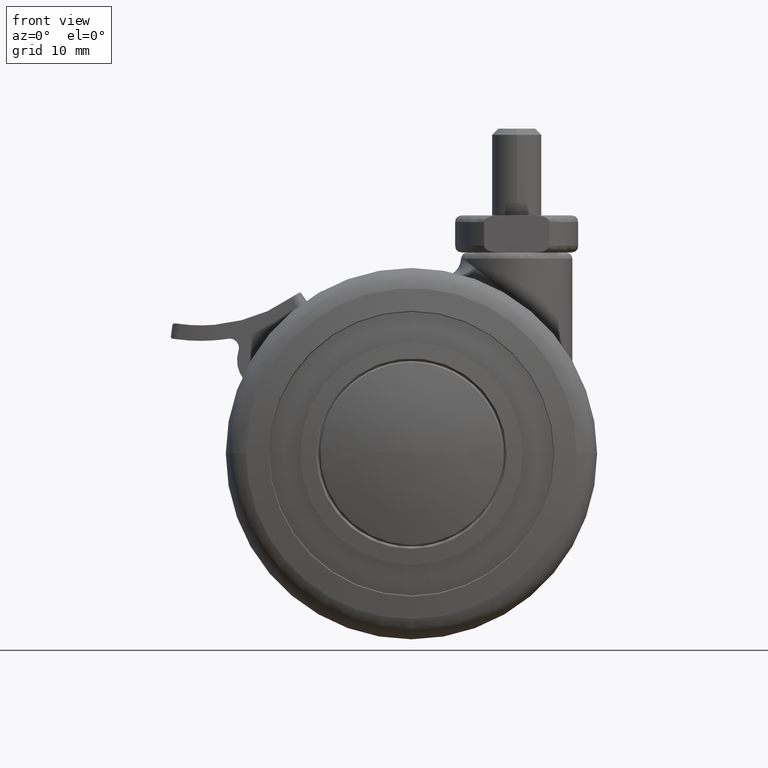
[diagram: clean part render]
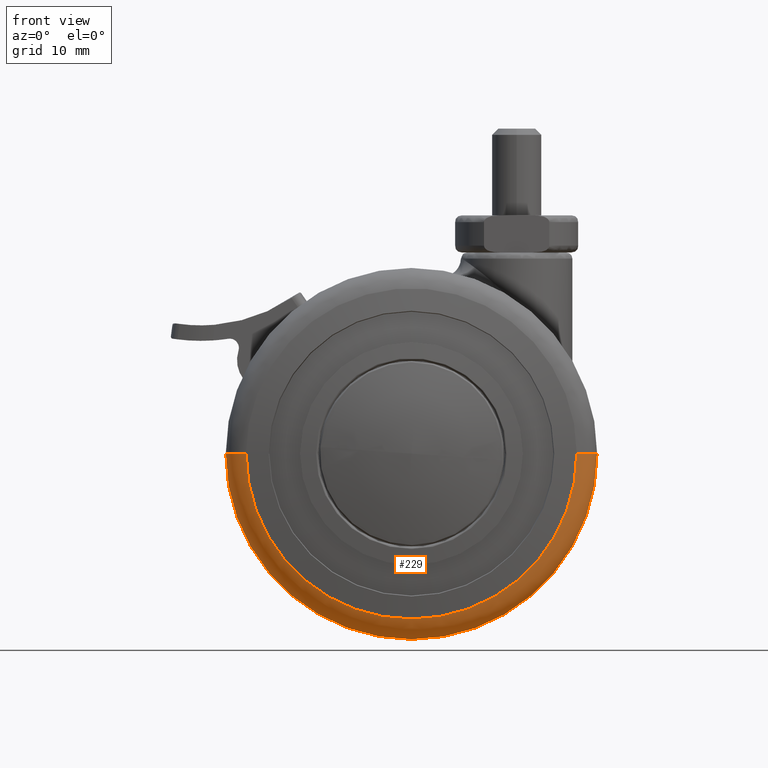
[diagram: same view with one face highlighted and labeled with its STEP entity id]
A machine part, front view. The second image highlights one B-rep face of the part: STEP entity #229.
In plain terms, the highlighted face is a freeform B-spline surface patch.
Its self-contained STEP definition (entity closure, byte-faithful):
#229=ADVANCED_FACE('',(#764),#763,.T.);
#763=( BOUNDED_SURFACE() B_SPLINE_SURFACE( 2,2,((#3525,#3526,#3527,#3528,#3529),(#3530,#3531,#3532,#3533,#3534),(#3535,#3536,#3537,#3538,#3539),(#3540,#3541,#3542,#3543,#3544),(#3545,#3546,#3547,#3548,#3549)), .UNSPECIFIED.,.F.,.F.,.F.) B_SPLINE_SURFACE_WITH_KNOTS((3,2,3),(3,2,3),(0.00000000000E+00,5.00000000000E-01,1.00000000000E+00),(0.00000000000E+00,5.00000000000E-01,1.00000000000E+00), .UNSPECIFIED. ) GEOMETRIC_REPRESENTATION_ITEM() RATIONAL_B_SPLINE_SURFACE(((1.00000000000E+00,7.07106781187E-01,1.00000000000E+00,7.07106781187E-01,1.00000000000E+00),(7.07106781187E-01,5.00000000000E-01,7.07106781187E-01,5.00000000000E-01,7.07106781187E-01),(1.00000000000E+00,7.07106781187E-01,1.00000000000E+00,7.07106781187E-01,1.00000000000E+00),(7.07106781187E-01,5.00000000000E-01,7.07106781187E-01,5.00000000000E-01,7.07106781187E-01),(1.00000000000E+00,7.07106781187E-01,1.00000000000E+00,7.07106781187E-01,1.00000000000E+00))) REPRESENTATION_ITEM('') SURFACE() );
#764=FACE_OUTER_BOUND('',#3550,.T.);
#3525=CARTESIAN_POINT('',(2.20000000000E+01,-2.69413397841E-15,8.45627996854E+00));
#3526=CARTESIAN_POINT('',(2.20000000000E+01,-2.69413397841E-15,1.24562799685E+01));
#3527=CARTESIAN_POINT('',(2.60000000000E+01,-3.18397651994E-15,1.24562799685E+01));
#3528=CARTESIAN_POINT('',(3.00000000000E+01,-3.67381906147E-15,1.24562799685E+01));
#3529=CARTESIAN_POINT('',(3.00000000000E+01,-3.67381906147E-15,8.45627996854E+00));
#3530=CARTESIAN_POINT('',(2.20000000000E+01,-2.20000000000E+01,8.45627996854E+00));
#3531=CARTESIAN_POINT('',(2.20000000000E+01,-2.20000000000E+01,1.24562799685E+01));
#3532=CARTESIAN_POINT('',(2.60000000000E+01,-2.60000000000E+01,1.24562799685E+01));
#3533=CARTESIAN_POINT('',(3.00000000000E+01,-3.00000000000E+01,1.24562799685E+01));
#3534=CARTESIAN_POINT('',(3.00000000000E+01,-3.00000000000E+01,8.45627996854E+00));
#3535=CARTESIAN_POINT('',(-1.34702249935E-15,-2.20000000000E+01,8.45627996854E+00));
#3536=CARTESIAN_POINT('',(-1.34702249935E-15,-2.20000000000E+01,1.24562799685E+01));
#3537=CARTESIAN_POINT('',(-1.59193568105E-15,-2.60000000000E+01,1.24562799685E+01));
#3538=CARTESIAN_POINT('',(-1.83684886275E-15,-3.00000000000E+01,1.24562799685E+01));
#3539=CARTESIAN_POINT('',(-1.83684886275E-15,-3.00000000000E+01,8.45627996854E+00));
#3540=CARTESIAN_POINT('',(-2.20000000000E+01,-2.20000000000E+01,8.45627996854E+00));
#3541=CARTESIAN_POINT('',(-2.20000000000E+01,-2.20000000000E+01,1.24562799685E+01));
#3542=CARTESIAN_POINT('',(-2.60000000000E+01,-2.60000000000E+01,1.24562799685E+01));
#3543=CARTESIAN_POINT('',(-3.00000000000E+01,-3.00000000000E+01,1.24562799685E+01));
#3544=CARTESIAN_POINT('',(-3.00000000000E+01,-3.00000000000E+01,8.45627996854E+00));
#3545=CARTESIAN_POINT('',(-2.20000000000E+01,-8.89797149472E-20,8.45627996854E+00));
#3546=CARTESIAN_POINT('',(-2.20000000000E+01,-8.89797149470E-20,1.24562799685E+01));
#3547=CARTESIAN_POINT('',(-2.60000000000E+01,-1.05157844937E-19,1.24562799685E+01));
#3548=CARTESIAN_POINT('',(-3.00000000000E+01,-1.21335974927E-19,1.24562799685E+01));
#3549=CARTESIAN_POINT('',(-3.00000000000E+01,-1.21335974928E-19,8.45627996854E+00));
#3550=EDGE_LOOP('',(#5941,#5942,#5943,#5944,#5945));
#5941=ORIENTED_EDGE('',*,*,#7019,.F.);
#5942=ORIENTED_EDGE('',*,*,#7022,.F.);
#5943=ORIENTED_EDGE('',*,*,#6967,.F.);
#5944=ORIENTED_EDGE('',*,*,#6969,.F.);
#5945=ORIENTED_EDGE('',*,*,#7023,.T.);
#6967=EDGE_CURVE('',#7723,#7724,#7725,.T.);
#6969=EDGE_CURVE('',#7731,#7723,#7738,.T.);
#7019=EDGE_CURVE('',#8057,#8064,#8065,.T.);
#7022=EDGE_CURVE('',#7724,#8057,#8083,.T.);
#7023=EDGE_CURVE('',#7731,#8064,#8089,.T.);
#7723=VERTEX_POINT('',#11478);
#7724=VERTEX_POINT('',#11479);
#7725=CIRCLE('',#11483,2.67123287671E+01);
#7731=VERTEX_POINT('',#11484);
#7738=CIRCLE('',#11492,2.67123287671E+01);
#8057=VERTEX_POINT('',#11691);
#8064=VERTEX_POINT('',#11694);
#8065=CIRCLE('',#11698,3.00000000000E+01);
#8083=(BOUNDED_CURVE() B_SPLINE_CURVE(2,(#11705,#11706,#11707),.UNSPECIFIED.,.F.,.F.) B_SPLINE_CURVE_WITH_KNOTS((3,3),(5.61193687220E-01,1.00000000000E+00),.UNSPECIFIED.) CURVE() GEOMETRIC_REPRESENTATION_ITEM() RATIONAL_B_SPLINE_CURVE((9.37081437318E-01,7.42953213228E-01,1.00000000000E+00)) REPRESENTATION_ITEM('') );
#8089=(BOUNDED_CURVE() B_SPLINE_CURVE(2,(#11708,#11709,#11710),.UNSPECIFIED.,.F.,.F.) B_SPLINE_CURVE_WITH_KNOTS((3,3),(5.61193973919E-01,1.00000000000E+00),.UNSPECIFIED.) CURVE() GEOMETRIC_REPRESENTATION_ITEM() RATIONAL_B_SPLINE_CURVE((7.02810887735E-01,5.57215035880E-01,7.50000000000E-01)) REPRESENTATION_ITEM('') );
#11478=CARTESIAN_POINT('',(-1.43418453520E-15,-2.67123287671E+01,1.23923424334E+01));
#11479=CARTESIAN_POINT('',(2.67123287671E+01,-6.83950822632E-10,1.23923424334E+01));
#11480=CARTESIAN_POINT('',(0.00000000000E+00,0.00000000000E+00,1.23923424334E+01));
#11481=DIRECTION('',(-0.00000000000E+00,0.00000000000E+00,1.00000000000E+00));
#11482=DIRECTION('',(3.13691920983E-16,-1.00000000000E+00,0.00000000000E+00));
#11483=AXIS2_PLACEMENT_3D('',#11480,#11481,#11482);
#11484=CARTESIAN_POINT('',(-2.67123286233E+01,2.77215065779E-03,1.23923424334E+01));
#11489=CARTESIAN_POINT('',(0.00000000000E+00,0.00000000000E+00,1.23923424334E+01));
#11490=DIRECTION('',(-0.00000000000E+00,0.00000000000E+00,1.00000000000E+00));
#11491=DIRECTION('',(3.13691920983E-16,-1.00000000000E+00,0.00000000000E+00));
#11492=AXIS2_PLACEMENT_3D('',#11489,#11490,#11491);
#11691=CARTESIAN_POINT('',(3.00000000000E+01,-2.36847578587E-15,8.45627996854E+00));
#11694=CARTESIAN_POINT('',(-3.00000000000E+01,3.67394039744E-15,8.45627996854E+00));
#11695=CARTESIAN_POINT('',(0.00000000000E+00,0.00000000000E+00,8.45627996854E+00));
#11696=DIRECTION('',(0.00000000000E+00,0.00000000000E+00,-1.00000000000E+00));
#11697=DIRECTION('',(-1.00000000000E+00,4.04453249757E-21,0.00000000000E+00));
#11698=AXIS2_PLACEMENT_3D('',#11695,#11696,#11697);
#11705=CARTESIAN_POINT('',(2.67123287694E+01,-3.27120875364E-15,1.23923424330E+01));
#11706=CARTESIAN_POINT('',(3.00000000000E+01,-3.67381906147E-15,1.17973562449E+01));
#11707=CARTESIAN_POINT('',(3.00000000000E+01,-3.67381906147E-15,8.45627996854E+00));
#11708=CARTESIAN_POINT('',(-2.67123321755E+01,2.56536229312E-15,1.23923418166E+01));
#11709=CARTESIAN_POINT('',(-3.00000000000E+01,3.57808274943E-15,1.17973533067E+01));
#11710=CARTESIAN_POINT('',(-3.00000000000E+01,4.73695157173E-15,8.45627996854E+00));